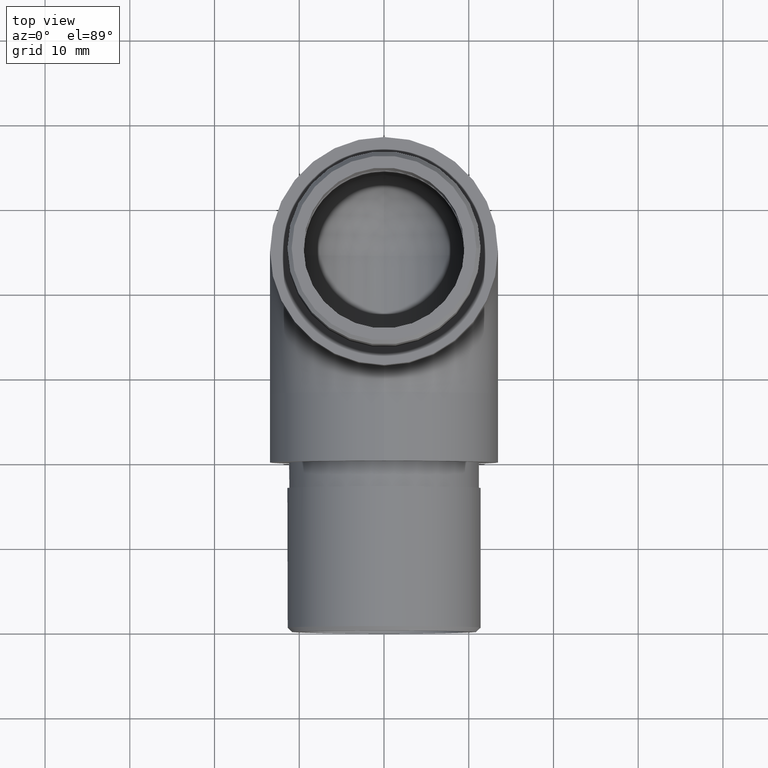
[diagram: clean part render]
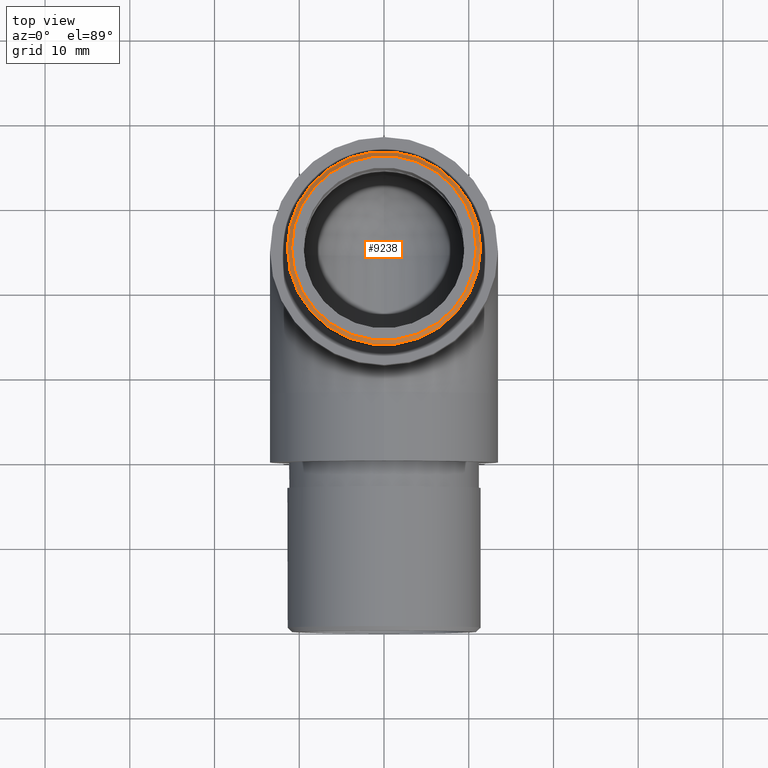
[diagram: same view with one face highlighted and labeled with its STEP entity id]
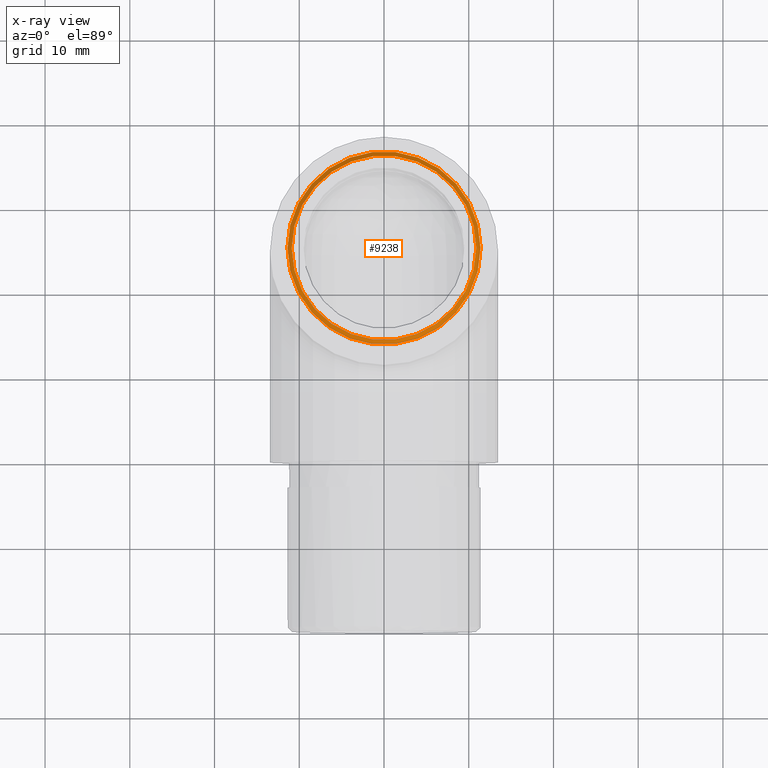
[diagram: x-ray of the same camera — body ghosted, the highlighted face saturated]
A machine part, top view. The second image highlights one B-rep face of the part: STEP entity #9238.
The next image is the same camera in x-ray: the body ghosted, the highlighted face saturated — about 0% of this face is hidden behind the body in this view.
In plain terms, the highlighted conical surface has half-angle 45 deg.
Its self-contained STEP definition (entity closure, byte-faithful):
#696 = CONICAL_SURFACE ( 'NONE', #10104, 10.89999999999999100, 0.7853981633974500600 ) ;
#742 = CARTESIAN_POINT ( 'NONE',  ( 2.618207179355330000E-015, 24.54999999999999700, 44.55000000000000400 ) ) ;
#1088 = VERTEX_POINT ( 'NONE', #2884 ) ;
#1315 = EDGE_CURVE ( 'NONE', #11701, #11701, #7743, .T. ) ;
#1493 = DIRECTION ( 'NONE',  ( 0.0000000000000000000, 0.0000000000000000000, -1.000000000000000000 ) ) ;
#1566 = ORIENTED_EDGE ( 'NONE', *, *, #10075, .F. ) ;
#2092 = AXIS2_PLACEMENT_3D ( 'NONE', #6204, #1493, #7215 ) ;
#2800 = FACE_OUTER_BOUND ( 'NONE', #4511, .T. ) ;
#2884 = CARTESIAN_POINT ( 'NONE',  ( 11.40000000000000400, 24.54999999999999700, 44.04999999999999700 ) ) ;
#3011 = CIRCLE ( 'NONE', #2092, 11.40000000000000000 ) ;
#3627 = DIRECTION ( 'NONE',  ( -1.000000000000000000, 0.0000000000000000000, 0.0000000000000000000 ) ) ;
#3670 = DIRECTION ( 'NONE',  ( 0.0000000000000000000, 0.0000000000000000000, -1.000000000000000000 ) ) ;
#4511 = EDGE_LOOP ( 'NONE', ( #1566 ) ) ;
#4754 = FACE_BOUND ( 'NONE', #6344, .T. ) ;
#6204 = CARTESIAN_POINT ( 'NONE',  ( 2.618207179355330000E-015, 24.54999999999999700, 44.04999999999999700 ) ) ;
#6344 = EDGE_LOOP ( 'NONE', ( #12352 ) ) ;
#6693 = DIRECTION ( 'NONE',  ( 1.000000000000000000, 0.0000000000000000000, 0.0000000000000000000 ) ) ;
#7034 = AXIS2_PLACEMENT_3D ( 'NONE', #11404, #7631, #6693 ) ;
#7215 = DIRECTION ( 'NONE',  ( 1.000000000000000000, 0.0000000000000000000, 0.0000000000000000000 ) ) ;
#7631 = DIRECTION ( 'NONE',  ( 0.0000000000000000000, 0.0000000000000000000, 1.000000000000000000 ) ) ;
#7743 = CIRCLE ( 'NONE', #7034, 10.89999999999999100 ) ;
#9238 = ADVANCED_FACE ( 'NONE', ( #2800, #4754 ), #696, .T. ) ;
#10075 = EDGE_CURVE ( 'NONE', #1088, #1088, #3011, .T. ) ;
#10104 = AXIS2_PLACEMENT_3D ( 'NONE', #742, #3670, #3627 ) ;
#11404 = CARTESIAN_POINT ( 'NONE',  ( 2.618207179355330000E-015, 24.54999999999999700, 44.55000000000000400 ) ) ;
#11701 = VERTEX_POINT ( 'NONE', #12364 ) ;
#12352 = ORIENTED_EDGE ( 'NONE', *, *, #1315, .F. ) ;
#12364 = CARTESIAN_POINT ( 'NONE',  ( 10.89999999999999500, 24.54999999999999700, 44.55000000000000400 ) ) ;